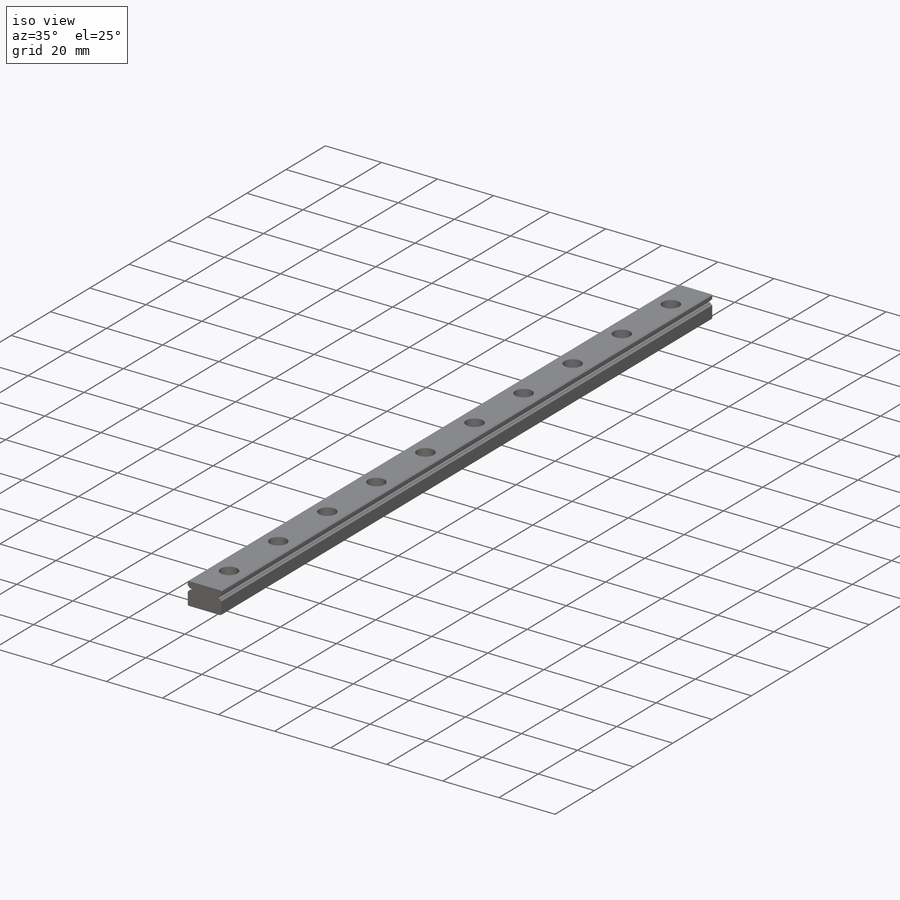
[diagram: iso view]
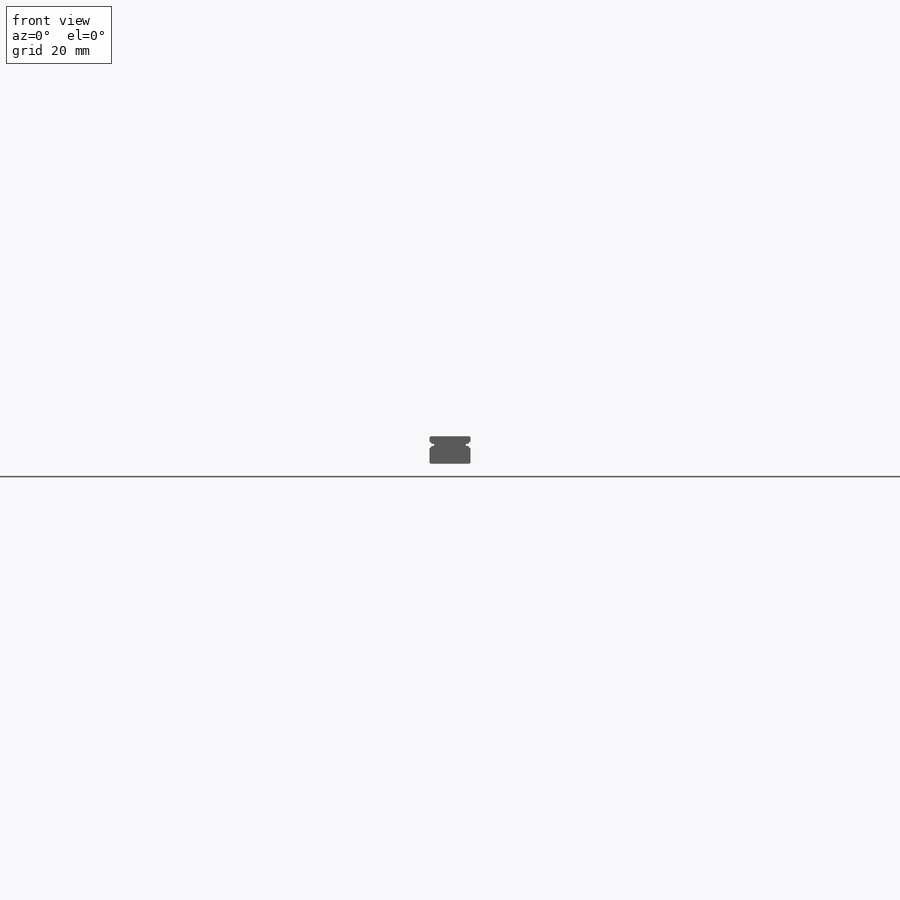
[diagram: front view]
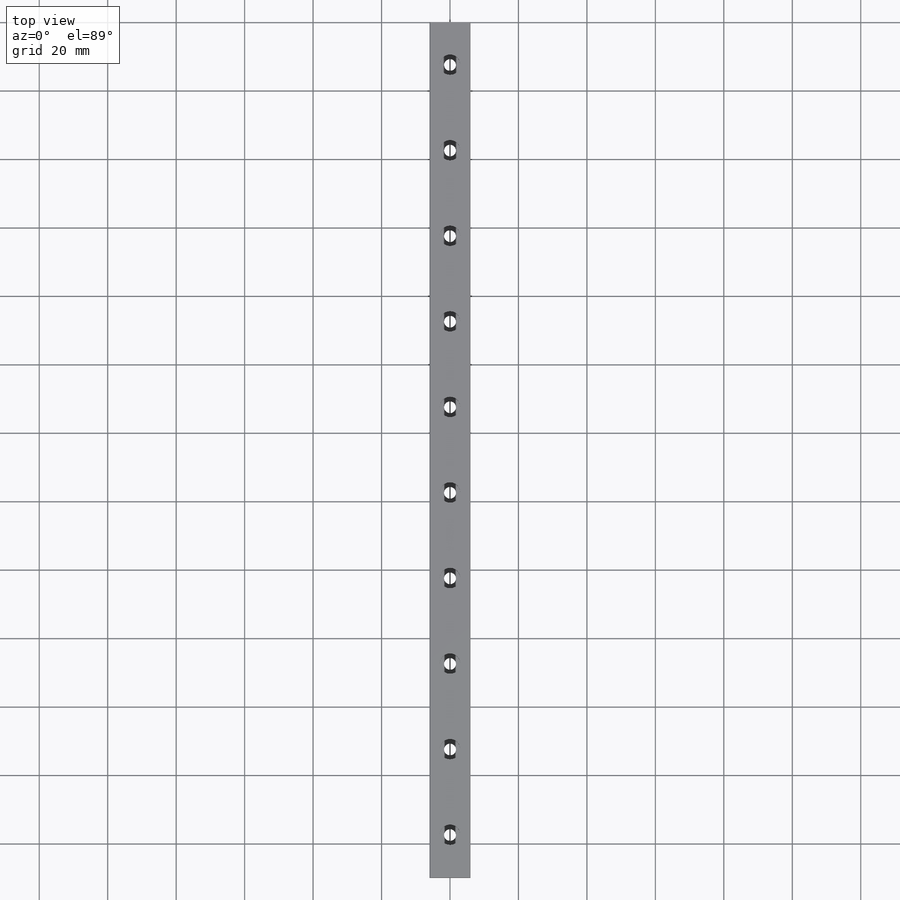
[diagram: top view]
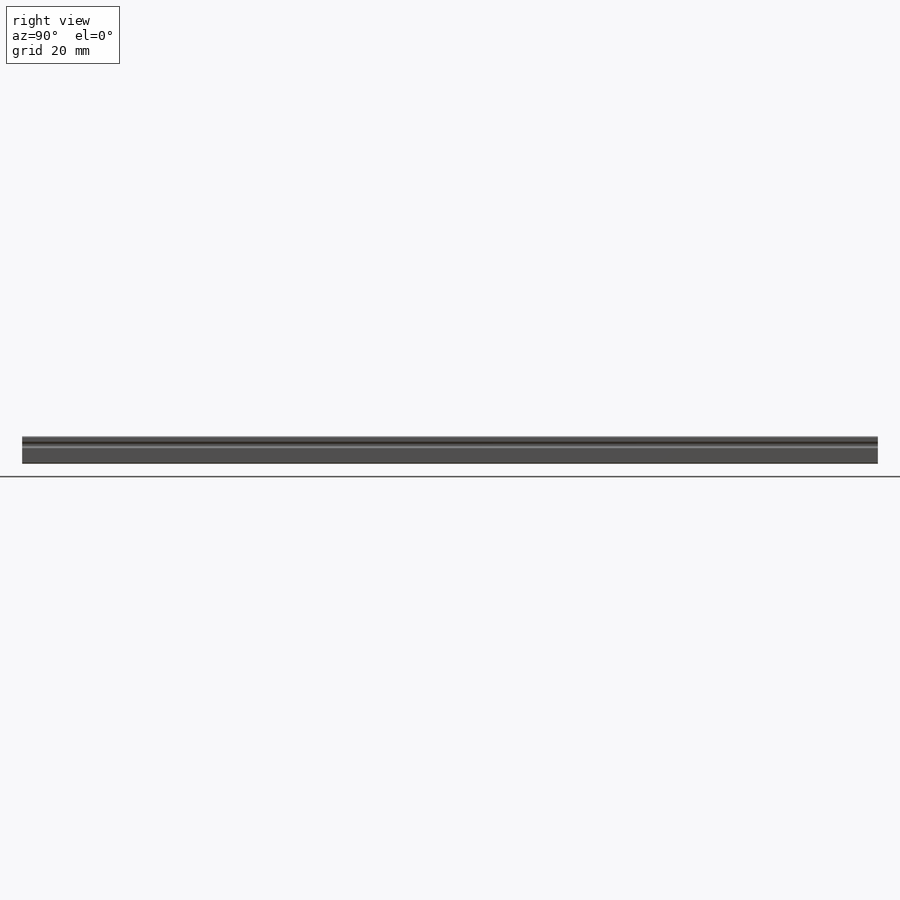
[diagram: right view]
SOLIDWORKS PART (.sldprt)
format: sldprt  version: not decoded by parser v0  size: 292,352 bytes
history: native  units: mm
features: plane x3, sketch x3, cut_extrude x2, material x1, extrude x1, pattern_linear x1 (+9 scaffold rows collapsed)
feature tree (20):
  scaffold x9  (default folders/planes/origin — collapsed)
  material  "Материал <не указан>"
  plane  "Спереди"
  plane  "Сверху"
  plane  "Справа"
  sketch  "Эскиз1"  dims[c1.D1=8.0mm c1.D2=12.0mm c2.D1=~0.638001mm c2.D2=~1.012527mm c3.D1=~11.165848mm]
  extrude  "Бобышка-Вытянуть1"  Depth=250mm
  sketch  "Эскиз2"  dims[D2=3.5mm D3=6.0mm D1=12.5mm]
  cut_extrude  "Вырез-Вытянуть1"  Depth=4.5mm
  cut_extrude  "Вырез-Вытянуть2"  [1 undecoded]
  sketch  "Эскиз2<2>"
  pattern_linear  "Линейный массив1"  Count1=10 Count2=1 Spacing1=25mm Spacing2=10mm
decode coverage: 5 of 7 modeling features carry decoded parameters
note: ~ marks probable driven/reference dimensions
note: 1 parameter value undecoded
note: suppression state not decoded; provenance and decode notes live in map.json
